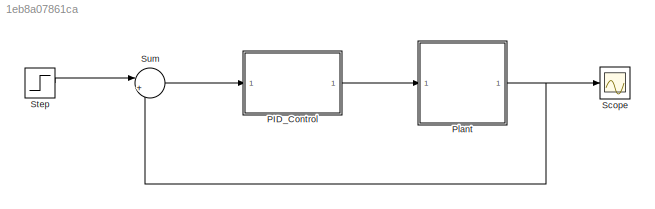
MODEL slx_1eb8a07861ca
KIND model
CONFIG AbsTol = auto
CONFIG EnableMultiTasking = off
CONFIG FixedStep = auto
CONFIG MaxStep = auto
CONFIG MinStep = auto
CONFIG RelTol = 1e-3
CONFIG SampleTimeConstraint = Unconstrained
CONFIG SolverName = VariableStepAuto
CONFIG StartTime = 0.0
CONFIG StopTime = 120
WORKSPACE source: mxarray member
WORKSPACE Kd: Simulink.Parameter (value not decoded)
WORKSPACE Ki: Simulink.Parameter (value not decoded)
WORKSPACE Kp: Simulink.Parameter (value not decoded)
WORKSPACE Sig: Simulink.Signal (value not decoded)
WORKSPACE Sig1: Simulink.Signal (value not decoded)
WORKSPACE Sig2: Simulink.Signal (value not decoded)
WORKSPACE Sig3: Simulink.Signal (value not decoded)
WORKSPACE Sig4: Simulink.Signal (value not decoded)
WORKSPACE Sig5: Simulink.Signal (value not decoded)
WORKSPACE Sig6: Simulink.Signal (value not decoded)
WORKSPACE Sig7: Simulink.Signal (value not decoded)
WORKSPACE b: Simulink.Parameter (value not decoded)
WORKSPACE m: Simulink.Parameter (value not decoded)
BLOCK [ModelReference] PID_Control
  ModelNameDialog = PID_Control
  ModelReferenceVersion = 1.10
  Ports = [1, 1]
  UsingDefaultArgumentValue = 0,0,0
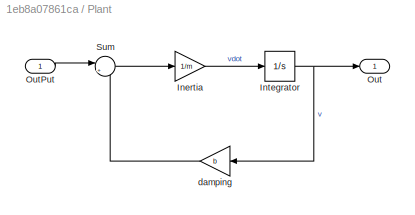
BLOCK [SubSystem] Plant
  Ports = [1, 1]
  RequestExecContextInheritance = off
BLOCK [Gain] Plant/Inertia
  Gain = 1/m
BLOCK [Integrator] Plant/Integrator
  Ports = [1, 1]
BLOCK [Outport] Plant/Out
BLOCK [Inport] Plant/OutPut
BLOCK [Sum] Plant/Sum
  Inputs = |+-
  Ports = [2, 1]
BLOCK [Gain] Plant/damping
  Gain = b
  NameLocation = top
BLOCK [Scope] Scope
  Floating = off
  NumInputPorts = 1
  Ports = [1]
  ScopeSpecificationString = Simulink.scopes.TimeScopeBlockCfg('CurrentConfiguration', extmgr.ConfigurationSet(extmgr.Configuration('Core','General UI',true),extmgr.Configuration('Core','Source UI',true),extmgr.Configuration('Sources','WiredSimulink',true),extmgr.Configuration('Visuals','Time Domain',true,'SerializedDisplays',{struct('MinYLimReal','-1.42941','MaxYLimReal','12.86467','YLabelReal','','MinYLimMag','0.00000','Max...<+1329ch>
BLOCK [Step] Step
  After = 10
  SampleTime = 0
BLOCK [Sum] Sum
  Inputs = |+-
  Ports = [2, 1]
LINE PID_Control:1 -> Plant:1
LINE Plant/Inertia:1 -> Plant/Integrator:1
NET Plant/Integrator:1 -> Plant/Out:1, Plant/damping:1
LINE Plant/OutPut:1 -> Plant/Sum:1
LINE Plant/Sum:1 -> Plant/Inertia:1
LINE Plant/damping:1 -> Plant/Sum:2
NET Plant:1 -> Scope:1, Sum:2
LINE Step:1 -> Sum:1
LINE Sum:1 -> PID_Control:1
note: NET lines group one-source signal fan-out (src -> all destinations, sorted); 1:1 wires keep LINE
